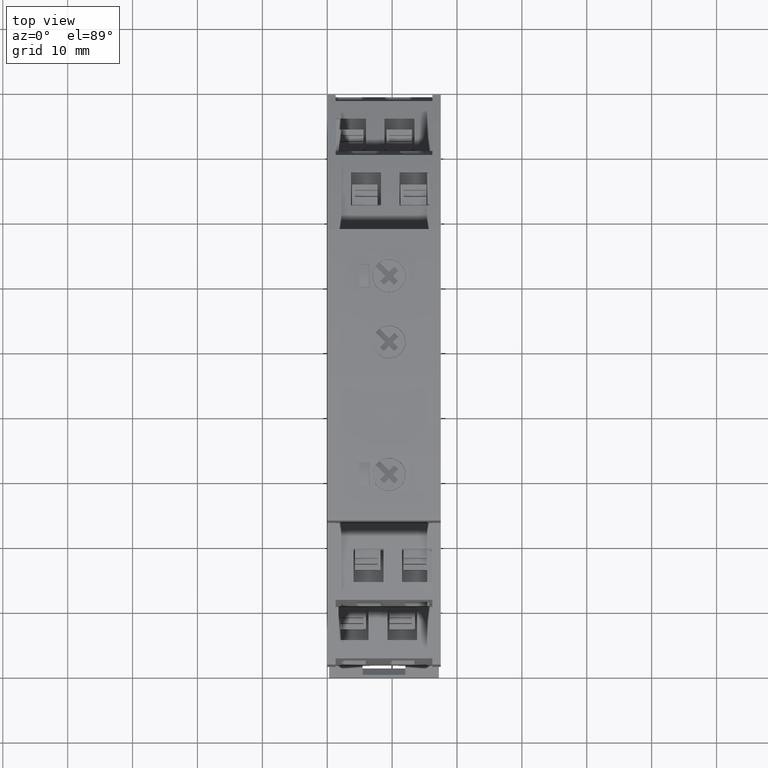
[diagram: clean part render]
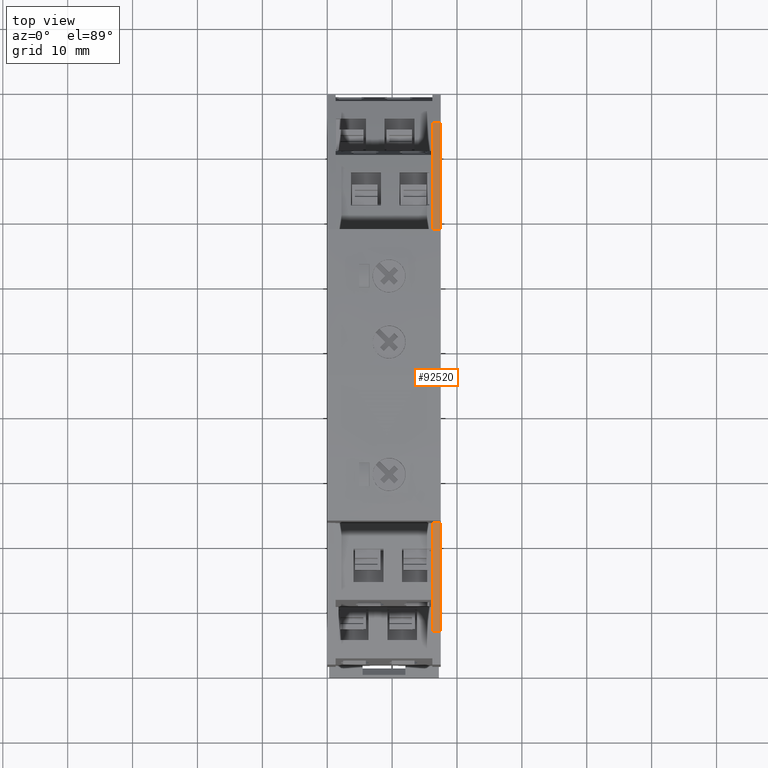
[diagram: same view with one face highlighted and labeled with its STEP entity id]
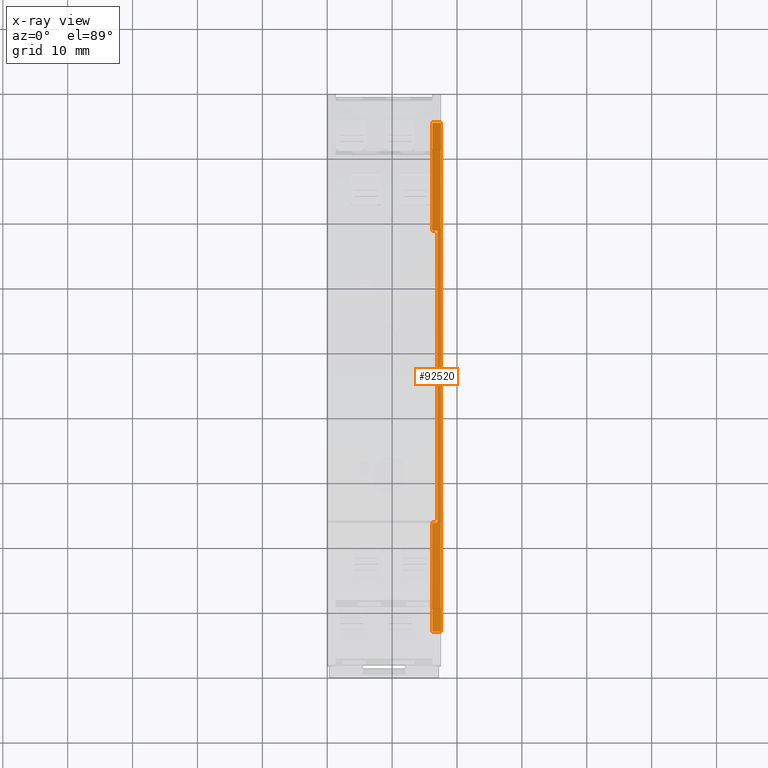
[diagram: x-ray of the same camera — body ghosted, the highlighted face saturated]
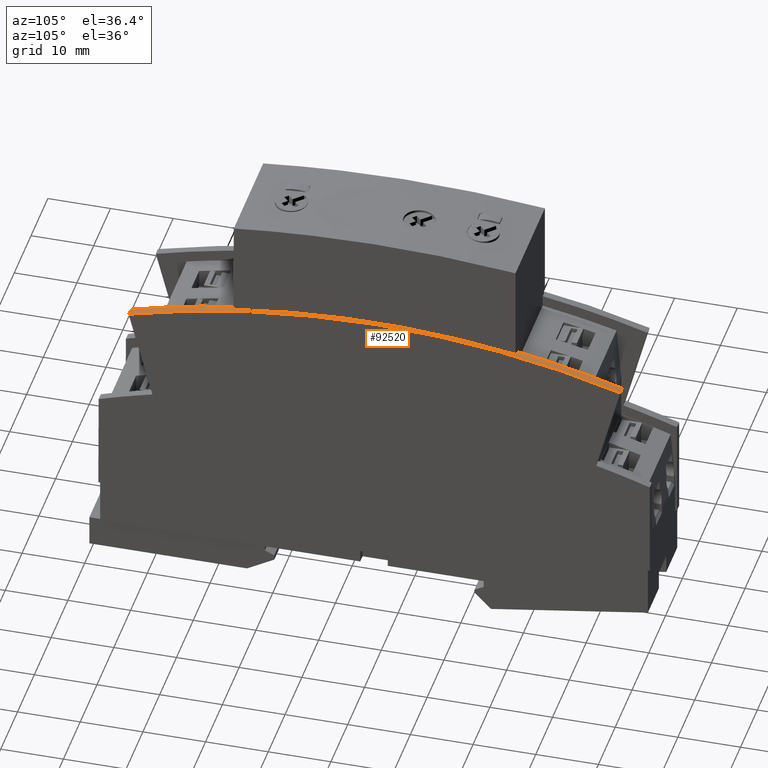
[diagram: same view with one face highlighted and labeled with its STEP entity id]
A machine part, top view. The second image highlights one B-rep face of the part: STEP entity #92520.
The next image is the same camera in x-ray: the body ghosted, the highlighted face saturated — about 36% of this face is hidden behind the body in this view.
A second angle (auxiliary view) of the same face is appended — the face is thin or edge-on in the first view.
In plain terms, the highlighted cylindrical surface (partial cylindrical patch) has radius 140 mm, axis along (-1, 0, 0).
Its self-contained STEP definition (entity closure, byte-faithful):
#60=CARTESIAN_POINT('',(-17.6721459234697,-94.1562521937762,17.5));
#70=DIRECTION('',(-1.35525271563154E-20,-1.81496661283925E-18,1.));
#80=DIRECTION('',(-0.999998476913288,0.00174532836589861,
-1.03847938020941E-20));
#90=AXIS2_PLACEMENT_3D('',#60,#70,#80);
#100=CIRCLE('',#90,140.);
#110=CARTESIAN_POINT('',(21.7897716862871,40.1670780901354,17.5));
#120=VERTEX_POINT('',#110);
#130=CARTESIAN_POINT('',(-56.664947194767,40.3040075449925,17.5));
#140=VERTEX_POINT('',#130);
#150=EDGE_CURVE('',#120,#140,#100,.T.);
#40370=CARTESIAN_POINT('',(-17.6721459234697,-94.1562521937762,0.5));
#40380=DIRECTION('',(1.35525271563154E-20,1.81496661283925E-18,-1.));
#40390=DIRECTION('',(-0.999998476913288,0.00174532836589861,
-1.13996274479003E-20));
#40400=AXIS2_PLACEMENT_3D('',#40370,#40380,#40390);
#40410=CYLINDRICAL_SURFACE('',#40400,140.);
#50530=CARTESIAN_POINT('',(-39.9309419432191,44.0629432884404,16.2));
#50540=VERTEX_POINT('',#50530);
#50570=CARTESIAN_POINT('',(-17.6721459234697,-94.1562521937762,16.2));
#50580=DIRECTION('',(1.35525271563154E-20,1.81496661283925E-18,-1.));
#50590=DIRECTION('',(-0.999998476913288,0.00174532836589861,
-1.03847938020941E-20));
#50600=AXIS2_PLACEMENT_3D('',#50570,#50580,#50590);
#50610=CIRCLE('',#50600,140.);
#50620=CARTESIAN_POINT('',(-56.664947194767,40.3040075449924,16.2));
#50630=VERTEX_POINT('',#50620);
#50640=EDGE_CURVE('',#50630,#50540,#50610,.T.);
#51690=CARTESIAN_POINT('',(-39.9309419432191,44.0629432884404,17.));
#51700=VERTEX_POINT('',#51690);
#51730=CARTESIAN_POINT('',(-39.9309419432191,44.0629432884404,0.5));
#51740=DIRECTION('',(1.35525271563154E-20,1.81496661283925E-18,-1.));
#51750=VECTOR('',#51740,1.);
#51760=LINE('',#51730,#51750);
#51770=EDGE_CURVE('',#51700,#50540,#51760,.T.);
#90840=CARTESIAN_POINT('',(5.06898951839837,43.9844035119741,17.));
#90850=VERTEX_POINT('',#90840);
#91270=CARTESIAN_POINT('',(5.06898951839837,43.984403511974,
16.2000000000001));
#91280=VERTEX_POINT('',#91270);
#91310=CARTESIAN_POINT('',(5.06898951839837,43.9844035119741,0.5));
#91320=DIRECTION('',(1.35525271563154E-20,1.81496661283925E-18,-1.));
#91330=VECTOR('',#91320,1.);
#91340=LINE('',#91310,#91330);
#91350=EDGE_CURVE('',#90850,#91280,#91340,.T.);
#92040=CARTESIAN_POINT('',(-17.6721459234697,-94.1562521937762,17.));
#92050=DIRECTION('',(1.35525271563154E-20,1.81496661283925E-18,-1.));
#92060=DIRECTION('',(-0.999998476913288,0.00174532836589861,
-1.03847938020941E-20));
#92070=AXIS2_PLACEMENT_3D('',#92040,#92050,#92060);
#92080=CIRCLE('',#92070,140.);
#92090=EDGE_CURVE('',#51700,#90850,#92080,.T.);
#92240=CARTESIAN_POINT('',(-17.6721459234697,-94.1562521937762,16.2));
#92250=DIRECTION('',(1.35525271563154E-20,1.81496661283925E-18,-1.));
#92260=DIRECTION('',(-0.999998476913288,0.00174532836589861,
-1.03847938020941E-20));
#92270=AXIS2_PLACEMENT_3D('',#92240,#92250,#92260);
#92280=CIRCLE('',#92270,140.);
#92290=CARTESIAN_POINT('',(21.7897716862872,40.1670780901354,
16.2000000000001));
#92300=VERTEX_POINT('',#92290);
#92310=EDGE_CURVE('',#91280,#92300,#92280,.T.);
#92320=ORIENTED_EDGE('',*,*,#92310,.F.);
#92330=CARTESIAN_POINT('',(21.7897716862871,40.1670780901354,0.5));
#92340=DIRECTION('',(1.35525271563154E-20,1.81496661283925E-18,-1.));
#92350=VECTOR('',#92340,1.);
#92360=LINE('',#92330,#92350);
#92370=EDGE_CURVE('',#120,#92300,#92360,.T.);
#92380=ORIENTED_EDGE('',*,*,#92370,.T.);
#92390=ORIENTED_EDGE('',*,*,#150,.F.);
#92400=CARTESIAN_POINT('',(-56.664947194767,40.3040075449925,0.5));
#92410=DIRECTION('',(1.35525271563154E-20,1.81496661283925E-18,-1.));
#92420=VECTOR('',#92410,1.);
#92430=LINE('',#92400,#92420);
#92440=EDGE_CURVE('',#140,#50630,#92430,.T.);
#92450=ORIENTED_EDGE('',*,*,#92440,.F.);
#92460=ORIENTED_EDGE('',*,*,#50640,.F.);
#92470=ORIENTED_EDGE('',*,*,#51770,.T.);
#92480=ORIENTED_EDGE('',*,*,#92090,.F.);
#92490=ORIENTED_EDGE('',*,*,#91350,.F.);
#92500=EDGE_LOOP('',(#92490,#92480,#92470,#92460,#92450,#92390,#92380,
#92320));
#92510=FACE_OUTER_BOUND('',#92500,.T.);
#92520=ADVANCED_FACE('',(#92510),#40410,.T.);